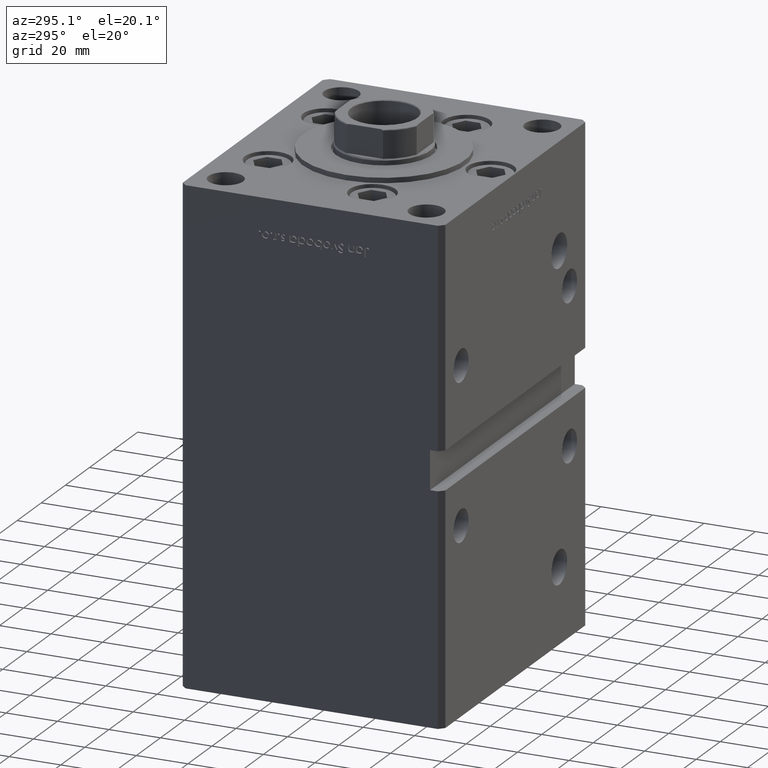
[diagram: clean part render]
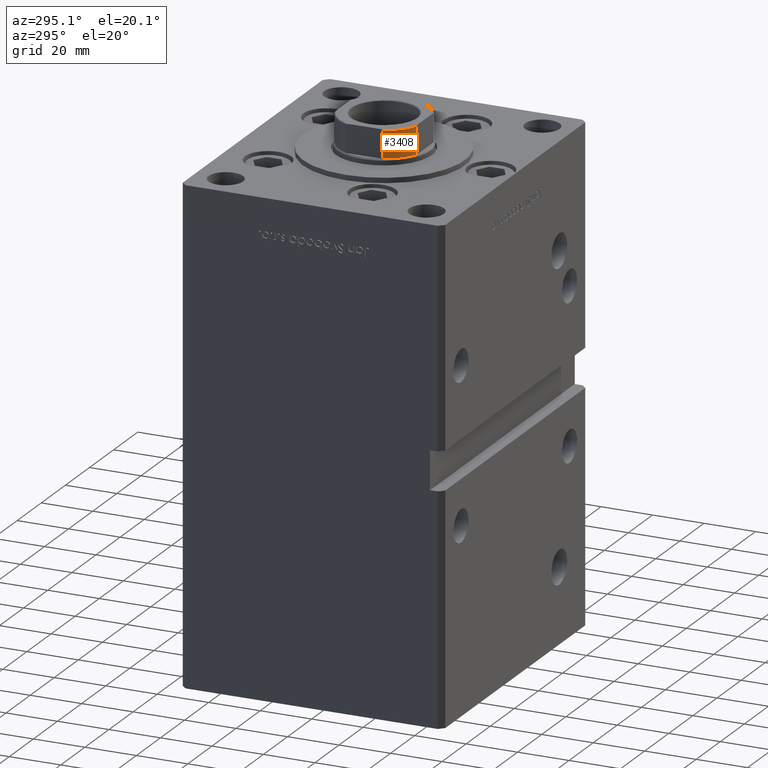
[diagram: same view with one face highlighted and labeled with its STEP entity id]
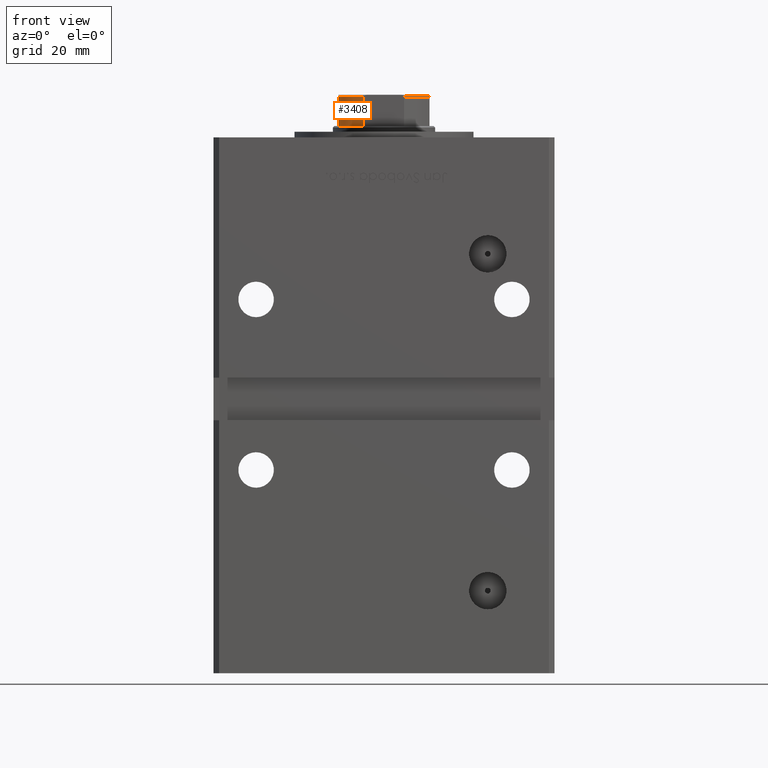
[diagram: same view with one face highlighted and labeled with its STEP entity id]
A machine part, auxiliary view. The second image highlights one B-rep face of the part: STEP entity #3408.
A second angle (front view) of the same face is appended — the face is thin or edge-on in the first view.
In plain terms, the highlighted cylindrical surface (partial cylindrical patch) has radius 17.5 mm, axis along (0, 0, 1).
Its self-contained STEP definition (entity closure, byte-faithful):
#1259 = ORIENTED_EDGE ( 'NONE', *, *, #36440, .T. ) ;
#2104 = LINE ( 'NONE', #39085, #6104 ) ;
#2701 = FACE_OUTER_BOUND ( 'NONE', #17842, .T. ) ;
#3408 = ADVANCED_FACE ( 'NONE', ( #2701 ), #33906, .T. ) ;
#3929 = VERTEX_POINT ( 'NONE', #7653 ) ;
#4330 = AXIS2_PLACEMENT_3D ( 'NONE', #50265, #33638, #26870 ) ;
#4664 = DIRECTION ( 'NONE',  ( 1.000000000000000000, 0.000000000000000000, 0.000000000000000000 ) ) ;
#6104 = VECTOR ( 'NONE', #18466, 1000.000000000000000 ) ;
#6879 = LINE ( 'NONE', #34056, #47495 ) ;
#7653 = CARTESIAN_POINT ( 'NONE',  ( -16.00000000000000355, -7.088723439378912694, 158.2500000000000284 ) ) ;
#11233 = CIRCLE ( 'NONE', #18936, 17.50000000000000000 ) ;
#14679 = CIRCLE ( 'NONE', #28387, 17.50000000000001421 ) ;
#16222 = CARTESIAN_POINT ( 'NONE',  ( -7.088723439378916247, -16.00000000000000000, 158.2500000000000284 ) ) ;
#17842 = EDGE_LOOP ( 'NONE', ( #41292, #1259, #47204, #37919 ) ) ;
#18466 = DIRECTION ( 'NONE',  ( -0.000000000000000000, -0.000000000000000000, 1.000000000000000000 ) ) ;
#18936 = AXIS2_PLACEMENT_3D ( 'NONE', #34523, #50612, #43617 ) ;
#19899 = EDGE_CURVE ( 'NONE', #39852, #33331, #6879, .T. ) ;
#22992 = DIRECTION ( 'NONE',  ( -0.000000000000000000, -0.000000000000000000, 1.000000000000000000 ) ) ;
#26870 = DIRECTION ( 'NONE',  ( 1.000000000000000000, 0.000000000000000000, 0.000000000000000000 ) ) ;
#27034 = VERTEX_POINT ( 'NONE', #41321 ) ;
#28387 = AXIS2_PLACEMENT_3D ( 'NONE', #52727, #36114, #4664 ) ;
#33331 = VERTEX_POINT ( 'NONE', #51693 ) ;
#33638 = DIRECTION ( 'NONE',  ( -0.000000000000000000, -0.000000000000000000, 1.000000000000000000 ) ) ;
#33906 = CYLINDRICAL_SURFACE ( 'NONE', #4330, 17.50000000000000000 ) ;
#34056 = CARTESIAN_POINT ( 'NONE',  ( -7.088723439378916247, -16.00000000000000000, -0.001000000000001000089 ) ) ;
#34523 = CARTESIAN_POINT ( 'NONE',  ( 0.000000000000000000, 0.000000000000000000, 168.7500000000000000 ) ) ;
#36114 = DIRECTION ( 'NONE',  ( 0.000000000000000000, 0.000000000000000000, 1.000000000000000000 ) ) ;
#36440 = EDGE_CURVE ( 'NONE', #33331, #27034, #11233, .T. ) ;
#37919 = ORIENTED_EDGE ( 'NONE', *, *, #38608, .T. ) ;
#38480 = EDGE_CURVE ( 'NONE', #3929, #27034, #2104, .T. ) ;
#38608 = EDGE_CURVE ( 'NONE', #3929, #39852, #14679, .T. ) ;
#39085 = CARTESIAN_POINT ( 'NONE',  ( -16.00000000000000355, -7.088723439378912694, -0.001000000000001000089 ) ) ;
#39852 = VERTEX_POINT ( 'NONE', #16222 ) ;
#41292 = ORIENTED_EDGE ( 'NONE', *, *, #19899, .T. ) ;
#41321 = CARTESIAN_POINT ( 'NONE',  ( -16.00000000000000355, -7.088723439378912694, 168.7500000000000000 ) ) ;
#43617 = DIRECTION ( 'NONE',  ( 1.000000000000000000, 8.881784197001252323E-16, 0.000000000000000000 ) ) ;
#47204 = ORIENTED_EDGE ( 'NONE', *, *, #38480, .F. ) ;
#47495 = VECTOR ( 'NONE', #22992, 1000.000000000000000 ) ;
#50265 = CARTESIAN_POINT ( 'NONE',  ( 0.000000000000000000, 0.000000000000000000, -0.001000000000001000089 ) ) ;
#50612 = DIRECTION ( 'NONE',  ( 0.000000000000000000, -0.000000000000000000, -1.000000000000000000 ) ) ;
#51693 = CARTESIAN_POINT ( 'NONE',  ( -7.088723439378916247, -16.00000000000000000, 168.7500000000000000 ) ) ;
#52727 = CARTESIAN_POINT ( 'NONE',  ( 0.000000000000000000, 0.000000000000000000, 158.2500000000000000 ) ) ;